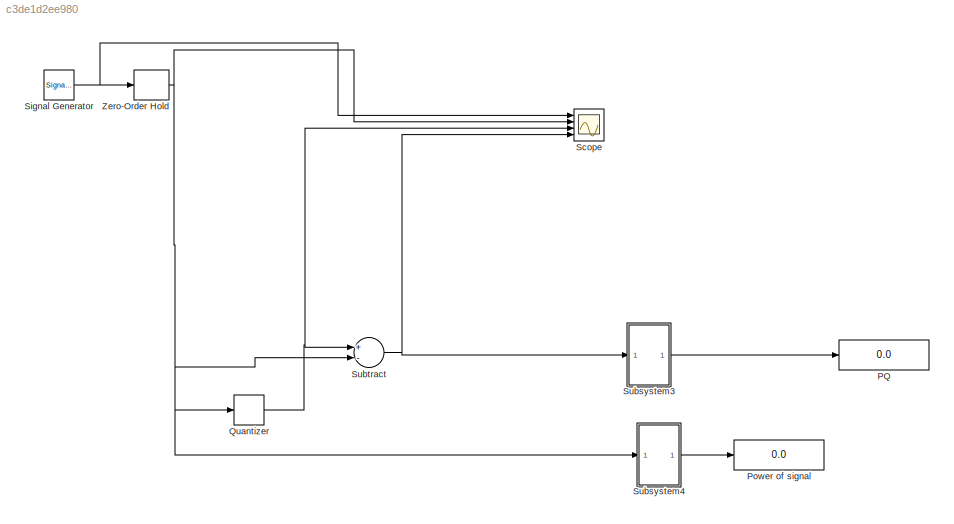
MODEL slx_c3de1d2ee980
KIND model
CONFIG AbsTol = auto
CONFIG EnableMultiTasking = off
CONFIG FixedStep = auto
CONFIG MaxStep = 0.001
CONFIG MinStep = auto
CONFIG RelTol = 1e-3
CONFIG SampleTimeConstraint = Unconstrained
CONFIG Solver = VariableStepAuto
CONFIG SolverName = VariableStepAuto
CONFIG StartTime = 0.0
CONFIG StopTime = 100
BLOCK [Display] PQ
  Decimation = 1
  Ports = [1]
BLOCK [Display] Power of signal
  Decimation = 1
  Ports = [1]
BLOCK [Quantizer] Quantizer
  QuantizationInterval = 2/16
BLOCK [Scope] Scope
  NumInputPorts = 4
  Ports = [4]
  ScopeSpecificationString = Simulink.scopes.TimeScopeBlockCfg('CurrentConfiguration', extmgr.ConfigurationSet(extmgr.Configuration('Core','General UI',true),extmgr.Configuration('Core','Source UI',true),extmgr.Configuration('Sources','WiredSimulink',true),extmgr.Configuration('Visuals','Time Domain',true,'SerializedDisplays',{struct('MinYLimReal','-0.15625','MaxYLimReal','0.15625','YLabelReal','','MinYLimMag','0.00000','MaxY...<+1404ch>
BLOCK [SignalGenerator] Signal Generator
  Amplitude = 1/10
  Ports = [0, 1]
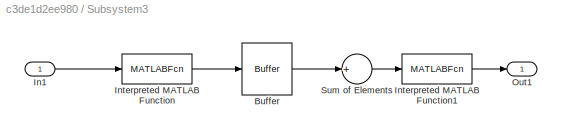
BLOCK [SubSystem] Subsystem3
  Ports = [1, 1]
  RequestExecContextInheritance = off
  Variant = off
BLOCK [Buffer] Subsystem3/Buffer
  N = 100
  OutputFrames = off
  TreatMby1Signals = One channel
  V = 99
BLOCK [Inport] Subsystem3/In1
  IconDisplay = Port number
BLOCK [MATLABFcn] Subsystem3/Interpreted MATLAB Function
  MATLABFcn = u*u
  Ports = [1, 1]
BLOCK [MATLABFcn] Subsystem3/Interpreted MATLAB Function1
  MATLABFcn = u/100
  Ports = [1, 1]
BLOCK [Outport] Subsystem3/Out1
  IconDisplay = Port number
BLOCK [Sum] Subsystem3/Sum of Elements
  InputSameDT = off
  Inputs = +
  OutDataTypeStr = Inherit: Inherit via internal rule
  Ports = [1, 1]
  SaturateOnIntegerOverflow = off
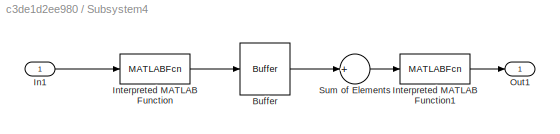
BLOCK [SubSystem] Subsystem4
  Ports = [1, 1]
  RequestExecContextInheritance = off
  Variant = off
BLOCK [Buffer] Subsystem4/Buffer
  N = 100
  OutputFrames = off
  TreatMby1Signals = One channel
  V = 99
BLOCK [Inport] Subsystem4/In1
  IconDisplay = Port number
BLOCK [MATLABFcn] Subsystem4/Interpreted MATLAB Function
  MATLABFcn = u*u
  Ports = [1, 1]
BLOCK [MATLABFcn] Subsystem4/Interpreted MATLAB Function1
  MATLABFcn = u/100
  Ports = [1, 1]
BLOCK [Outport] Subsystem4/Out1
  IconDisplay = Port number
BLOCK [Sum] Subsystem4/Sum of Elements
  InputSameDT = off
  Inputs = +
  OutDataTypeStr = Inherit: Inherit via internal rule
  Ports = [1, 1]
  SaturateOnIntegerOverflow = off
BLOCK [Sum] Subtract
  InputSameDT = off
  Inputs = +-
  OutDataTypeStr = Inherit: Inherit via internal rule
  Ports = [2, 1]
  SaturateOnIntegerOverflow = off
BLOCK [ZeroOrderHold] Zero-Order Hold
  SampleTime = 1/100
NET Quantizer:1 -> Scope:3, Subtract:1
NET Signal Generator:1 -> Scope:1, Zero-Order Hold:1
LINE Subsystem3/Buffer:1 -> Subsystem3/Sum of Elements:1
LINE Subsystem3/In1:1 -> Subsystem3/Interpreted MATLAB Function:1
LINE Subsystem3/Interpreted MATLAB Function1:1 -> Subsystem3/Out1:1
LINE Subsystem3/Interpreted MATLAB Function:1 -> Subsystem3/Buffer:1
LINE Subsystem3/Sum of Elements:1 -> Subsystem3/Interpreted MATLAB Function1:1
LINE Subsystem3:1 -> PQ:1
LINE Subsystem4/Buffer:1 -> Subsystem4/Sum of Elements:1
LINE Subsystem4/In1:1 -> Subsystem4/Interpreted MATLAB Function:1
LINE Subsystem4/Interpreted MATLAB Function1:1 -> Subsystem4/Out1:1
LINE Subsystem4/Interpreted MATLAB Function:1 -> Subsystem4/Buffer:1
LINE Subsystem4/Sum of Elements:1 -> Subsystem4/Interpreted MATLAB Function1:1
LINE Subsystem4:1 -> Power of signal:1
NET Subtract:1 -> Scope:4, Subsystem3:1
NET Zero-Order Hold:1 -> Quantizer:1, Scope:2, Subsystem4:1, Subtract:2
note: NET lines group one-source signal fan-out (src -> all destinations, sorted); 1:1 wires keep LINE
